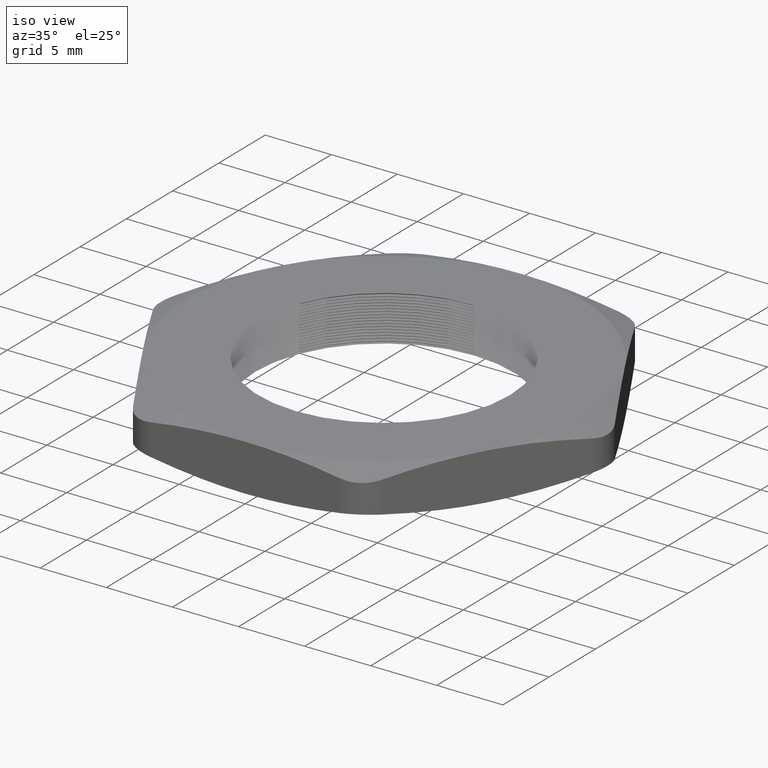
[diagram: clean part render]
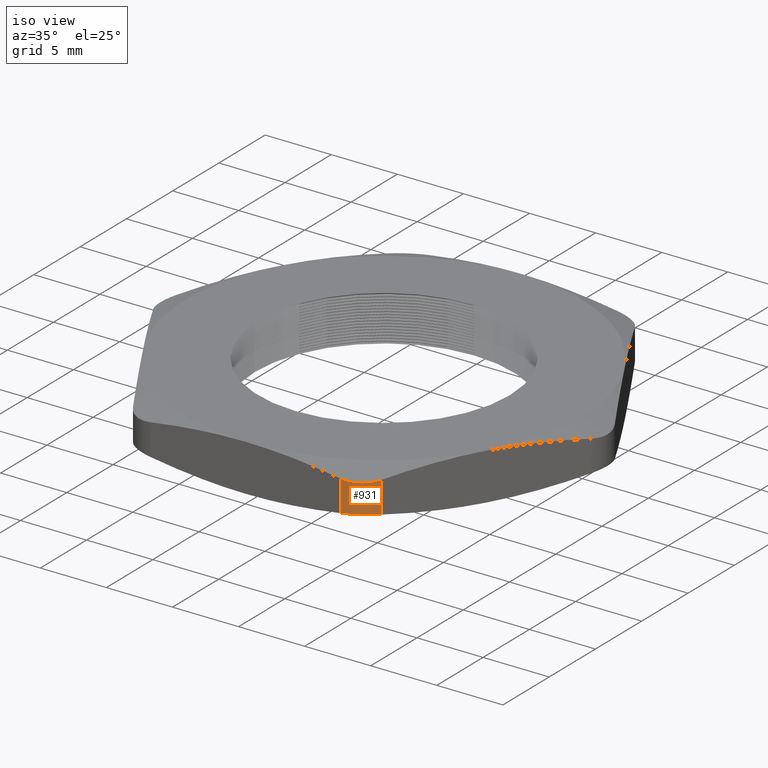
[diagram: same view with one face highlighted and labeled with its STEP entity id]
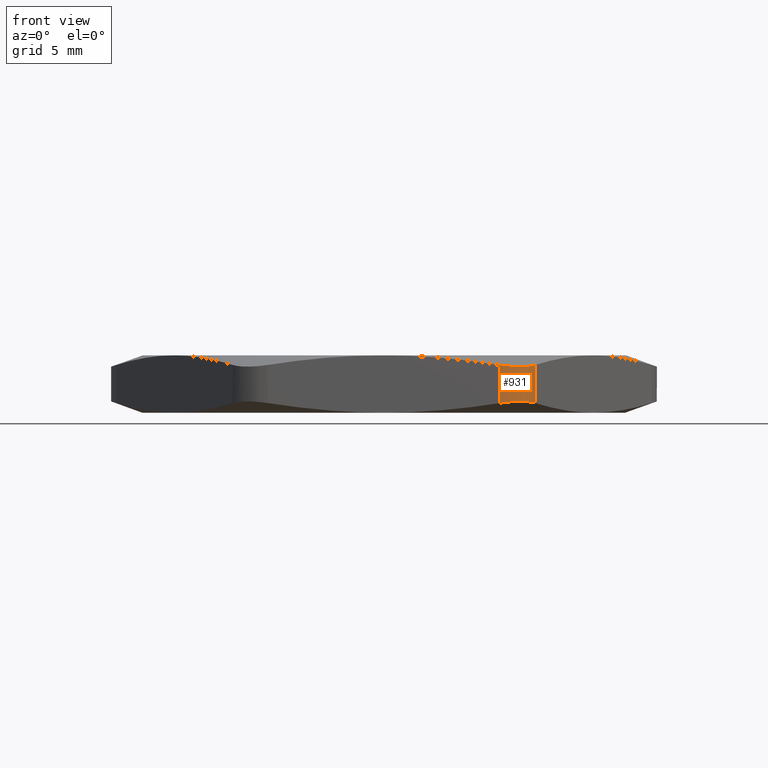
[diagram: same view with one face highlighted and labeled with its STEP entity id]
A machine part, iso view. The second image highlights one B-rep face of the part: STEP entity #931.
A second angle (front view) of the same face is appended — the face is thin or edge-on in the first view.
In plain terms, the highlighted cylindrical surface (partial cylindrical patch) has radius 2.54 mm, axis along (0, 0, -1).
Its self-contained STEP definition (entity closure, byte-faithful):
#749 = EDGE_CURVE ( 'NONE', #825, #750, #2012, .T. ) ;
#750 = VERTEX_POINT ( 'NONE', #2008 ) ;
#825 = VERTEX_POINT ( 'NONE', #2167 ) ;
#836 = VERTEX_POINT ( 'NONE', #2194 ) ;
#838 = EDGE_CURVE ( 'NONE', #836, #839, #2193, .T. ) ;
#839 = VERTEX_POINT ( 'NONE', #2240 ) ;
#931 = ADVANCED_FACE ( 'NONE', ( #2456 ), #2498, .T. ) ;
#932 = EDGE_LOOP ( 'NONE', ( #933, #934, #936, #937 ) ) ;
#933 = ORIENTED_EDGE ( 'NONE', *, *, #749, .F. ) ;
#934 = ORIENTED_EDGE ( 'NONE', *, *, #935, .T. ) ;
#935 = EDGE_CURVE ( 'NONE', #825, #839, #2488, .T. ) ;
#936 = ORIENTED_EDGE ( 'NONE', *, *, #838, .F. ) ;
#937 = ORIENTED_EDGE ( 'NONE', *, *, #938, .T. ) ;
#938 = EDGE_CURVE ( 'NONE', #836, #750, #2475, .T. ) ;
#2008 = CARTESIAN_POINT ( 'NONE',  ( 0.2829016319029166200, -0.5899999999999998600, 0.1165898041837598600 ) ) ;
#2009 = DIRECTION ( 'NONE',  ( -0.0000000000000000000, -0.0000000000000000000, 1.000000000000000000 ) ) ;
#2010 = VECTOR ( 'NONE', #2009, 39.37007874015748100 ) ;
#2011 = CARTESIAN_POINT ( 'NONE',  ( 0.2829016319029166200, -0.5899999999999998600, 0.1400000000000000100 ) ) ;
#2012 = LINE ( 'NONE', #2011, #2010 ) ;
#2167 = CARTESIAN_POINT ( 'NONE',  ( 0.2829016319029177300, -0.5899999999999998600, 0.02341019581623868900 ) ) ;
#2193 = LINE ( 'NONE', #2243, #2242 ) ;
#2194 = CARTESIAN_POINT ( 'NONE',  ( 0.3695041722813604000, -0.5399999999999998100, 0.1165898041837598300 ) ) ;
#2240 = CARTESIAN_POINT ( 'NONE',  ( 0.3695041722813604000, -0.5399999999999998100, 0.02341019581624016700 ) ) ;
#2241 = DIRECTION ( 'NONE',  ( 0.0000000000000000000, 0.0000000000000000000, -1.000000000000000000 ) ) ;
#2242 = VECTOR ( 'NONE', #2241, 39.37007874015748100 ) ;
#2243 = CARTESIAN_POINT ( 'NONE',  ( 0.3695041722813604500, -0.5399999999999998100, 0.1400000000000000100 ) ) ;
#2440 = AXIS2_PLACEMENT_3D ( 'NONE', #2491, #2490, #2489 ) ;
#2456 = FACE_OUTER_BOUND ( 'NONE', #932, .T. ) ;
#2469 = CARTESIAN_POINT ( 'NONE',  ( 0.3651381384351336000, -0.5475621924492303200, 0.1152156707908652000 ) ) ;
#2470 = CARTESIAN_POINT ( 'NONE',  ( 0.3695041722813604000, -0.5399999999999998100, 0.1165898041837598300 ) ) ;
#2475 = B_SPLINE_CURVE_WITH_KNOTS ( 'NONE', 3,
 ( #2470, #2469, #2527, #2526, #2525, #2524, #2523, #2522, #2521, #2520 ),
 .UNSPECIFIED., .F., .F.,
 ( 4, 2, 2, 2, 4 ),
 ( 2.305283928960364000E-007, 0.0006644491919588617900, 0.001328667855524827600, 0.001992886519090793500, 0.002657105182656761600 ),
 .UNSPECIFIED. ) ;
#2476 = CARTESIAN_POINT ( 'NONE',  ( 0.3695041722813604000, -0.5399999999999998100, 0.02341019581624016700 ) ) ;
#2477 = CARTESIAN_POINT ( 'NONE',  ( 0.3651377445164705200, -0.5475628747363684400, 0.02478445318819863200 ) ) ;
#2478 = CARTESIAN_POINT ( 'NONE',  ( 0.3597847473690305400, -0.5545333734719307700, 0.02583072383873798200 ) ) ;
#2479 = CARTESIAN_POINT ( 'NONE',  ( 0.3474957251864413400, -0.5668321081861142900, 0.02723072399524584900 ) ) ;
#2480 = CARTESIAN_POINT ( 'NONE',  ( 0.3404093738601076100, -0.5722733349497004500, 0.02759157585614248300 ) ) ;
#2481 = CARTESIAN_POINT ( 'NONE',  ( 0.3253008490887964700, -0.5809854296620344800, 0.02758867859265858400 ) ) ;
#2482 = CARTESIAN_POINT ( 'NONE',  ( 0.3170995975436248800, -0.5843757819199580900, 0.02722925459453962700 ) ) ;
#2483 = CARTESIAN_POINT ( 'NONE',  ( 0.3002203381533378200, -0.5888754341622742800, 0.02581793229850197100 ) ) ;
#2484 = CARTESIAN_POINT ( 'NONE',  ( 0.2916337179818066500, -0.5899999999999999700, 0.02478433210254068700 ) ) ;
#2485 = CARTESIAN_POINT ( 'NONE',  ( 0.2829016319029177300, -0.5899999999999998600, 0.02341019581623868900 ) ) ;
#2488 = B_SPLINE_CURVE_WITH_KNOTS ( 'NONE', 3,
 ( #2485, #2484, #2483, #2482, #2481, #2480, #2479, #2478, #2477, #2476 ),
 .UNSPECIFIED., .F., .F.,
 ( 4, 2, 2, 2, 4 ),
 ( 1.996484191546791200E-007, 0.0006644183056871190200, 0.001328636962955080500, 0.001992855620223042200, 0.002657074277491003900 ),
 .UNSPECIFIED. ) ;
#2489 = DIRECTION ( 'NONE',  ( -1.000000000000000000, 0.0000000000000000000, 0.0000000000000000000 ) ) ;
#2490 = DIRECTION ( 'NONE',  ( 0.0000000000000000000, 0.0000000000000000000, -1.000000000000000000 ) ) ;
#2491 = CARTESIAN_POINT ( 'NONE',  ( 0.2829016319029165600, -0.4899999999999998200, 0.1400000000000000100 ) ) ;
#2498 = CYLINDRICAL_SURFACE ( 'NONE', #2440, 0.09999999999999999200 ) ;
#2520 = CARTESIAN_POINT ( 'NONE',  ( 0.2829016319029166200, -0.5899999999999998600, 0.1165898041837598600 ) ) ;
#2521 = CARTESIAN_POINT ( 'NONE',  ( 0.2916344918958205800, -0.5899999999999998600, 0.1152155461094558800 ) ) ;
#2522 = CARTESIAN_POINT ( 'NONE',  ( 0.3003476335038803300, -0.5888494143445509600, 0.1141692742250595100 ) ) ;
#2523 = CARTESIAN_POINT ( 'NONE',  ( 0.3171431553112573100, -0.5843561750114829600, 0.1127692753527653700 ) ) ;
#2524 = CARTESIAN_POINT ( 'NONE',  ( 0.3253985704520011000, -0.5809398279768190900, 0.1124084237049083100 ) ) ;
#2525 = CARTESIAN_POINT ( 'NONE',  ( 0.3404977336752632600, -0.5722115025962155600, 0.1124113218517238700 ) ) ;
#2526 = CARTESIAN_POINT ( 'NONE',  ( 0.3475344738540587200, -0.5668041991354780800, 0.1127707450677139900 ) ) ;
#2527 = CARTESIAN_POINT ( 'NONE',  ( 0.3598709312914901100, -0.5544361405979253400, 0.1141820697376479100 ) ) ;